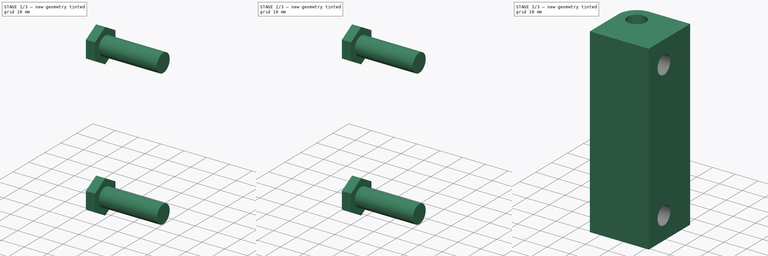
[diagram: build sequence overview — one tinted view per stage of 3, left to right]
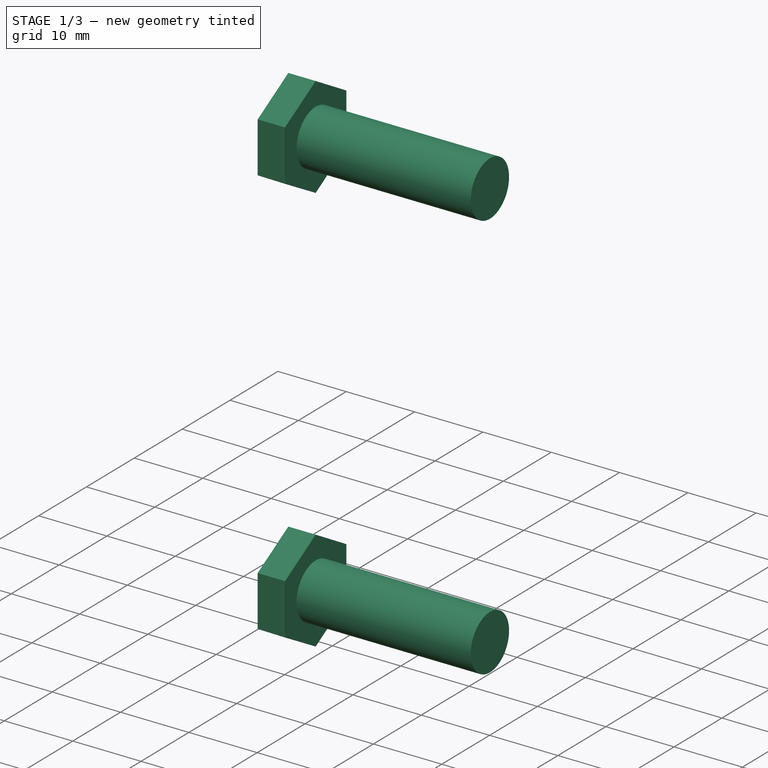
[diagram: stage 1 of 3 — iso view after this stage's code; geometry added in this stage tinted green]
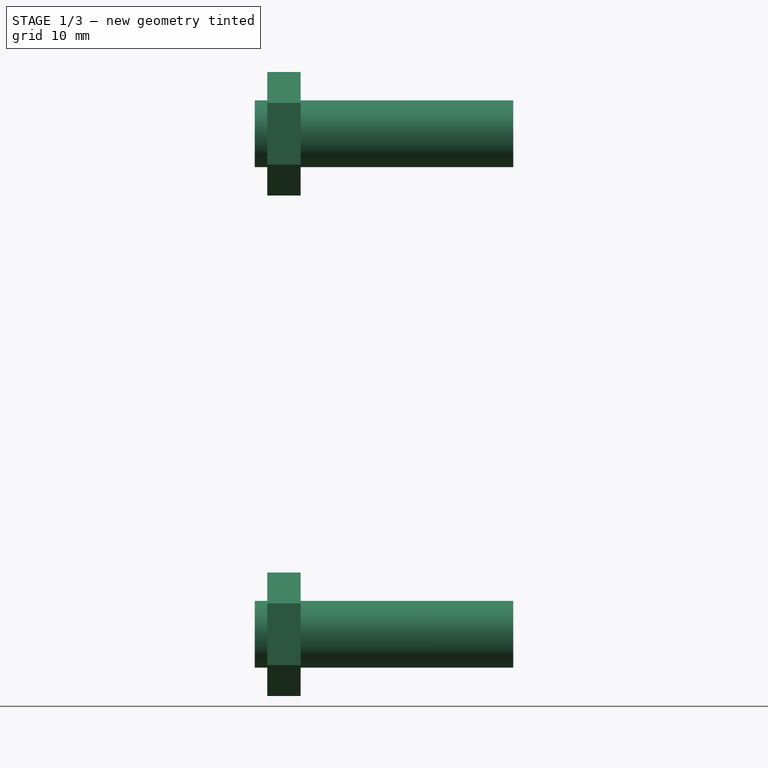
[diagram: stage 1 of 3 — front view after this stage's code; geometry added in this stage tinted green]
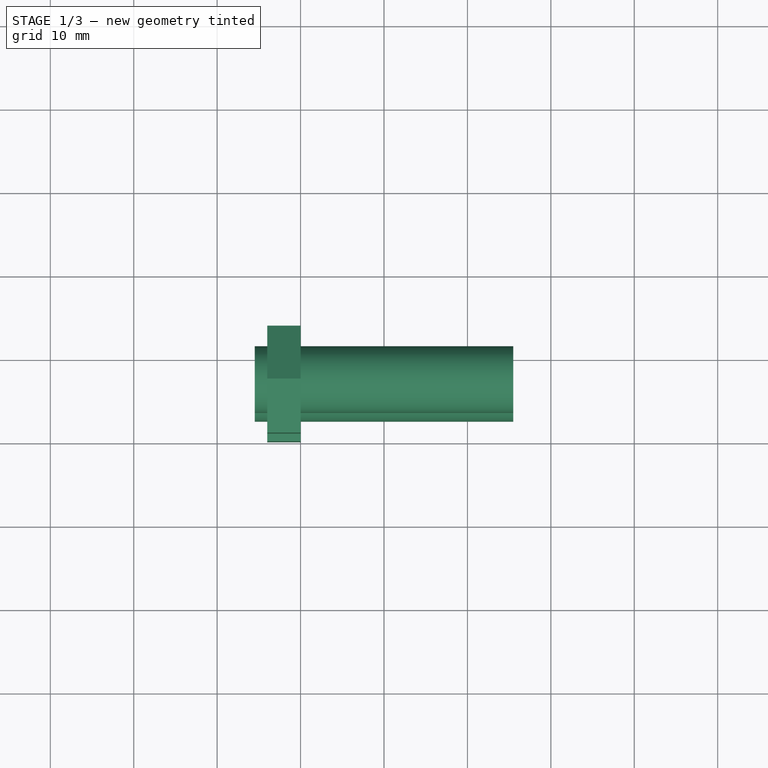
[diagram: stage 1 of 3 — top view after this stage's code; geometry added in this stage tinted green]
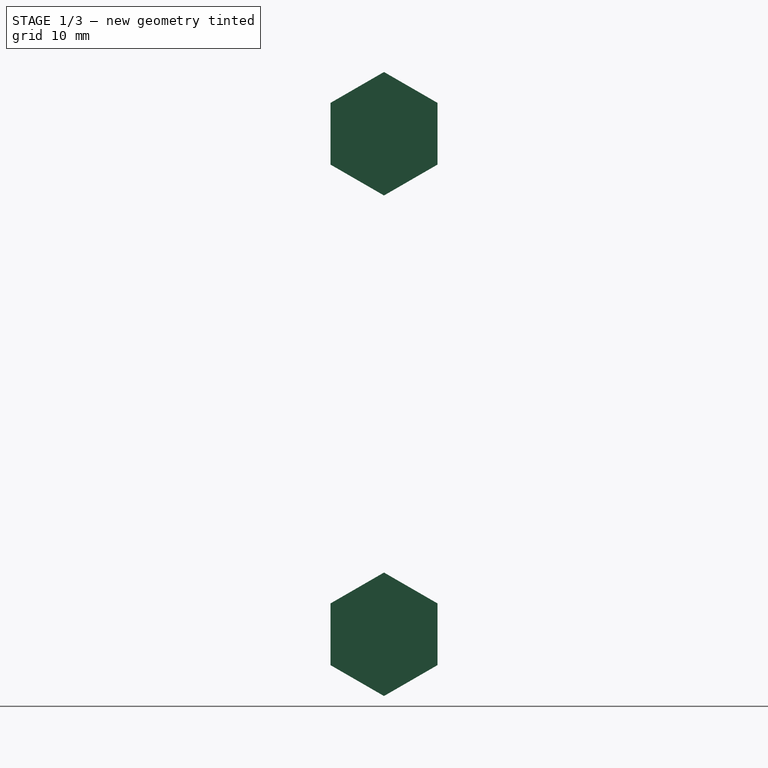
[diagram: stage 1 of 3 — right view after this stage's code; geometry added in this stage tinted green]
FCSTD DOCUMENT  (FreeCAD 0.16R6710 (Git))
Label: Corner_F
License: All rights reserved
LicenseURL: http://en.wikipedia.org/wiki/All_rights_reserved
objects: Sketcher::SketchObject×3, PartDesign::Pad×3, Part::MultiFuse×1, Part::Cut×1
note: 11 computed .brp shape members not serialized (recipe doc carries the construction recipe); baked Part::Feature solids carry a one-line shape summary decoded from their .brp

FEATURE [Sketcher::SketchObject] Sketch
  sketch-geometry (6):
    g0: LineSegment StartX=-13 StartY=5.00002 StartZ=0 EndX=-13 EndY=-13 EndZ=0
    g1: LineSegment StartX=-13 StartY=-13 StartZ=0 EndX=13 EndY=-13 EndZ=0
    g2: LineSegment StartX=13 StartY=-13 StartZ=0 EndX=13 EndY=13 EndZ=0
    g3: LineSegment StartX=13 StartY=13 StartZ=0 EndX=-5.00001 EndY=13 EndZ=0
    g4: ArcOfCircle CenterX=-5.00001 CenterY=5 CenterZ=0 NormalX=0 NormalY=0 NormalZ=1 Radius=8 StartAngle=1.5708 EndAngle=3.14159
    g5: Circle CenterX=-5.00001 CenterY=5 CenterZ=0 NormalX=0 NormalY=0 NormalZ=1 Radius=4.1
  constraints (18):
    c: Vertical(g0)
    c: Coincident(g0,g1)
    c: Horizontal(g1)
    c: Coincident(g1,g2)
    c: Vertical(g2)
    c: Coincident(g2,g3)
    c: Horizontal(g3)
    c: Coincident(g4,g3)
    c: Coincident(g4,g0)
    c: Equal(g0,g3)
    c: Coincident(g5,g4)
    c: Radius(g5) = 4.1
    c: DistanceY(g-1,g4) = 5
    c: Tangent(g0,g4)
    c: Symmetric(g0,g1,g-2)
    c: Symmetric(g1,g2,g-1)
    c: Tangent(g4,g3)
    c: DistanceY(g2,g2) = 26
FEATURE [Sketcher::SketchObject] Sketch001
  Placement = pos=(15.5,0,0) rot=(0.57735,0.57735,0.57735;2.0944rad)
  sketch-geometry (2):
    g0: Circle CenterX=-3.5 CenterY=70 CenterZ=0 NormalX=0 NormalY=0 NormalZ=1 Radius=4
    g1: Circle CenterX=-3.5 CenterY=10 CenterZ=0 NormalX=0 NormalY=0 NormalZ=1 Radius=4
  constraints (5):
    c: Radius(g1) = 4
    c: Equal(g1,g0)
    c: DistanceX(g0,g1) = 0
    c: DistanceY(g1,g0) = 60
    c: DistanceX(g1,g-1) = 3.5
FEATURE [Sketcher::SketchObject] Sketch002
  Placement = pos=(-10,0,0) rot=(0.57735,0.57735,0.57735;2.0944rad)
  sketch-geometry (14):
    g0: LineSegment StartX=2.90859 StartY=66.3 StartZ=0 EndX=2.90859 EndY=73.7 EndZ=0
    g1: LineSegment StartX=2.90859 StartY=73.7 StartZ=0 EndX=-3.5 EndY=77.4 EndZ=0
    g2: LineSegment StartX=-3.5 StartY=77.4 StartZ=0 EndX=-9.90859 EndY=73.7 EndZ=0
    g3: LineSegment StartX=-9.90859 StartY=73.7 StartZ=0 EndX=-9.90859 EndY=66.3 EndZ=0
    g4: LineSegment StartX=-9.90859 StartY=66.3 StartZ=0 EndX=-3.5 EndY=62.6 EndZ=0
    g5: LineSegment StartX=-3.5 StartY=62.6 StartZ=0 EndX=2.90859 EndY=66.3 EndZ=0
    g6: Circle [constr] CenterX=-3.5 CenterY=70 CenterZ=0 NormalX=0 NormalY=0 NormalZ=1 Radius=7.4
    g7: LineSegment StartX=-3.5 StartY=2.6 StartZ=0 EndX=2.90859 EndY=6.3 EndZ=0
    g8: LineSegment StartX=2.90859 StartY=6.3 StartZ=0 EndX=2.90859 EndY=13.7 EndZ=0
    g9: LineSegment StartX=2.90859 StartY=13.7 StartZ=0 EndX=-3.5 EndY=17.4 EndZ=0
    g10: LineSegment StartX=-3.5 StartY=17.4 StartZ=0 EndX=-9.90859 EndY=13.7 EndZ=0
    g11: LineSegment StartX=-9.90859 StartY=13.7 StartZ=0 EndX=-9.90859 EndY=6.3 EndZ=0
    g12: LineSegment StartX=-9.90859 StartY=6.3 StartZ=0 EndX=-3.5 EndY=2.6 EndZ=0
    g13: Circle [constr] CenterX=-3.5 CenterY=10 CenterZ=0 NormalX=0 NormalY=0 NormalZ=1 Radius=7.4
  constraints (34):
    c: Coincident(g0,g1)
    c: Coincident(g1,g2)
    c: Coincident(g2,g3)
    c: Coincident(g3,g4)
    c: Coincident(g4,g5)
    c: Coincident(g5,g0)
    c: Equal(g0, g1-g5) x5
    c: PointOnObject(g0,g6)
    c: PointOnObject(g1,g6)
    c: PointOnObject(g2,g6)
    c: PointOnObject(g3,g6)
    c: PointOnObject(g4,g6)
    c: PointOnObject(g5,g6)
    c: Coincident(g7,g8)
    c: Coincident(g8,g9)
    c: Coincident(g9,g10)
    c: Coincident(g10,g11)
    c: Coincident(g11,g12)
    c: Coincident(g12,g7)
    c: Equal(g7, g8-g12) x5
    c: PointOnObject(g7,g13)
    c: PointOnObject(g8,g13)
    c: PointOnObject(g9,g13)
    c: PointOnObject(g10,g13)
    c: PointOnObject(g11,g13)
    c: PointOnObject(g12,g13)
    c: Parallel(g9,g4)
    c: Radius(g6) = 7.4
    c: Equal(g6,g13)
    c: DistanceX(g13,g6) = 0
    c: DistanceY(g6,g13) = -60
    c: DistanceX(g6,g-1) = 3.5
    c: Parallel(g0,g-2)
    c: DistanceY(g-1,g13) = 10
FEATURE [PartDesign::Pad] Pad004  label="RodHole02"
  Length = 31
  Length2 = 100
  Placement = pos=(15.5,0,0) rot=(0.57735,0.57735,0.57735;2.0944rad)
  Reversed = true
  Sketch = -> Sketch001
  Type = 0
FEATURE [PartDesign::Pad] Pad006  label="SideNutFlush02"
  Length = 4
  Length2 = 100
  Placement = pos=(-10,0,0) rot=(0.57735,0.57735,0.57735;2.0944rad)
  Reversed = true
  Sketch = -> Sketch002
  Type = 0
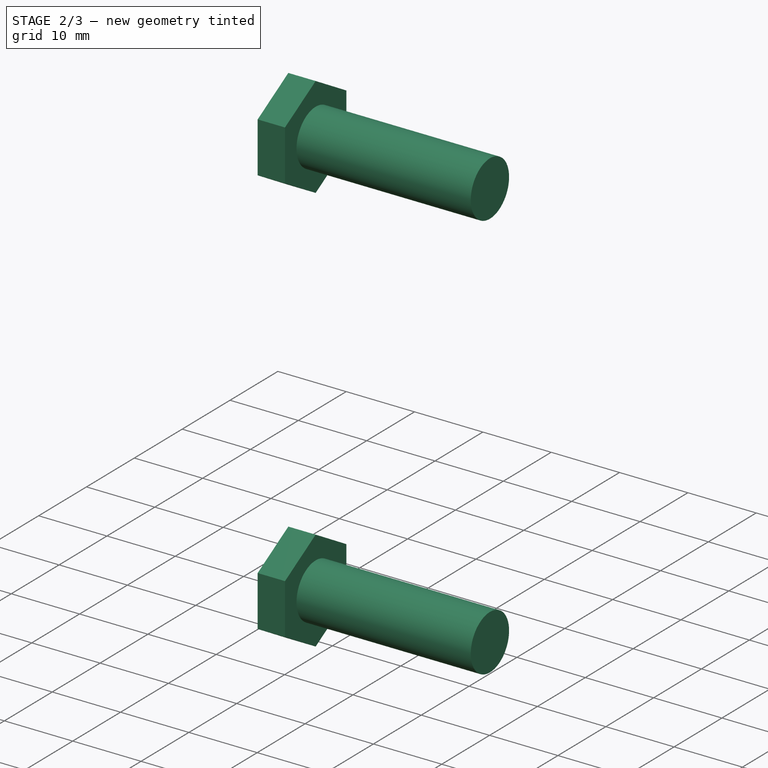
[diagram: stage 2 of 3 — iso view after this stage's code; geometry added in this stage tinted green]
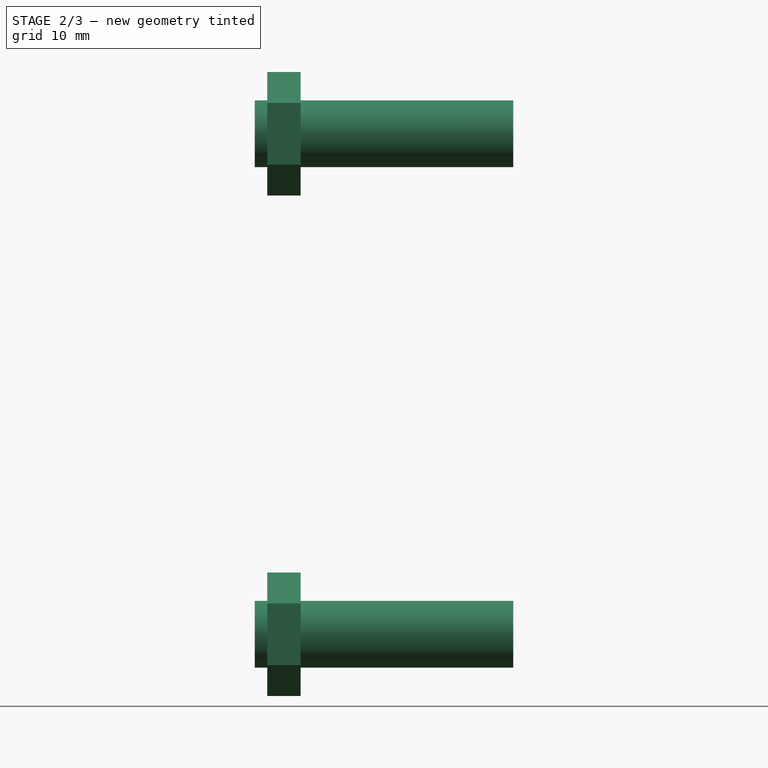
[diagram: stage 2 of 3 — front view after this stage's code; geometry added in this stage tinted green]
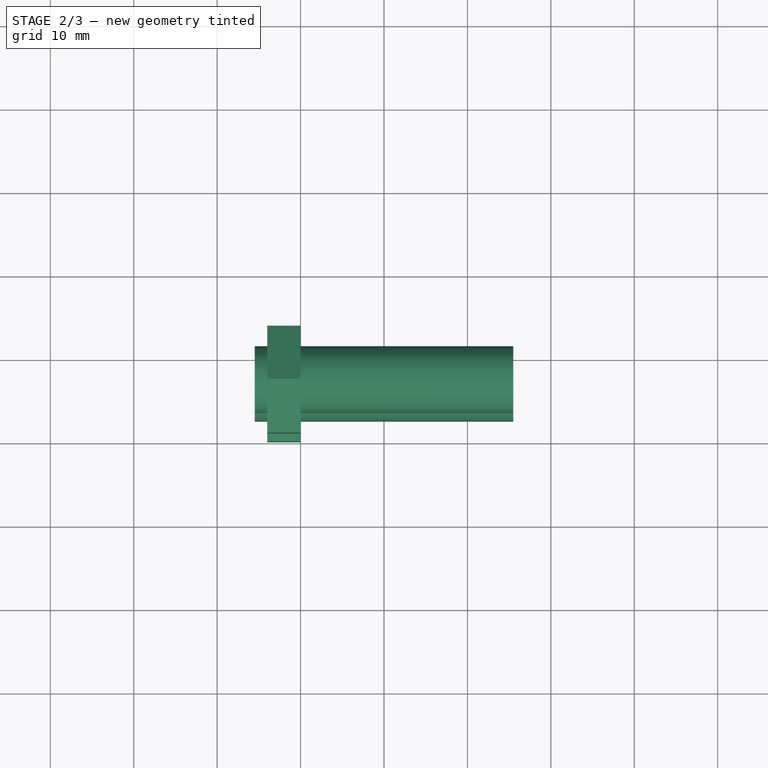
[diagram: stage 2 of 3 — top view after this stage's code; geometry added in this stage tinted green]
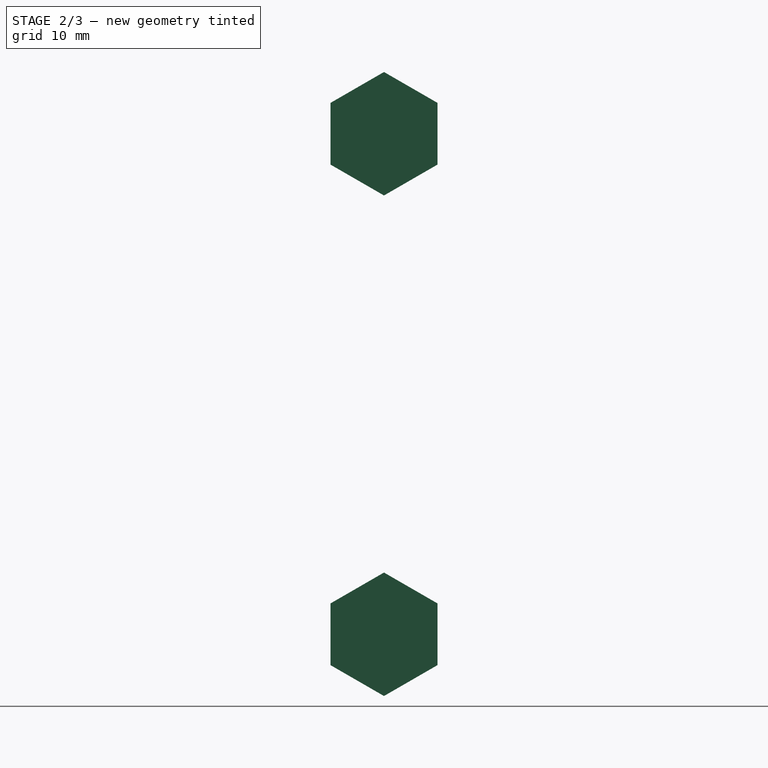
[diagram: stage 2 of 3 — right view after this stage's code; geometry added in this stage tinted green]
FEATURE [Part::MultiFuse] Fusion  label="CutBlock"
  Shapes = -> [Pad006,Pad004]
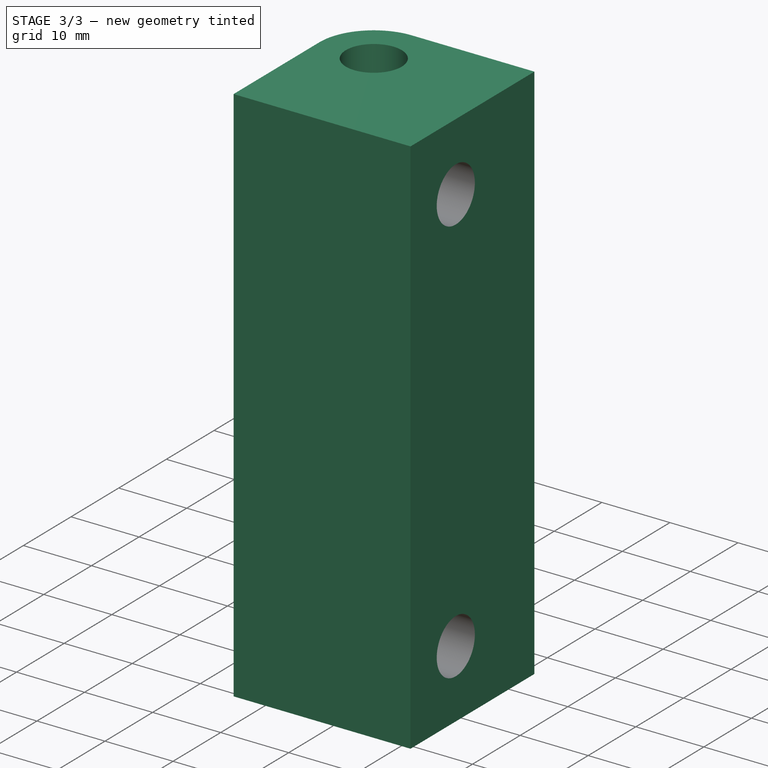
[diagram: stage 3 of 3 — iso view after this stage's code; geometry added in this stage tinted green]
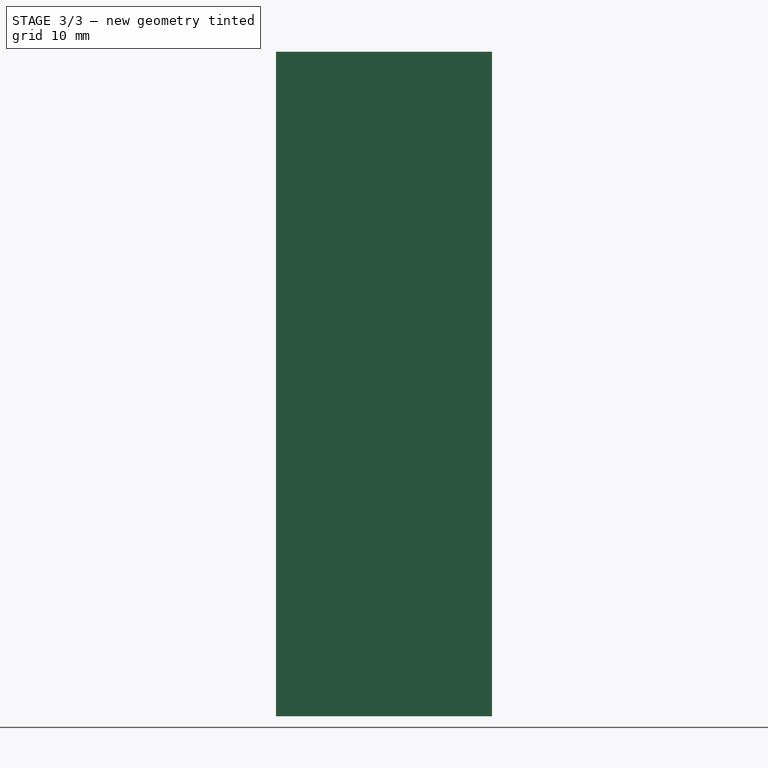
[diagram: stage 3 of 3 — front view after this stage's code; geometry added in this stage tinted green]
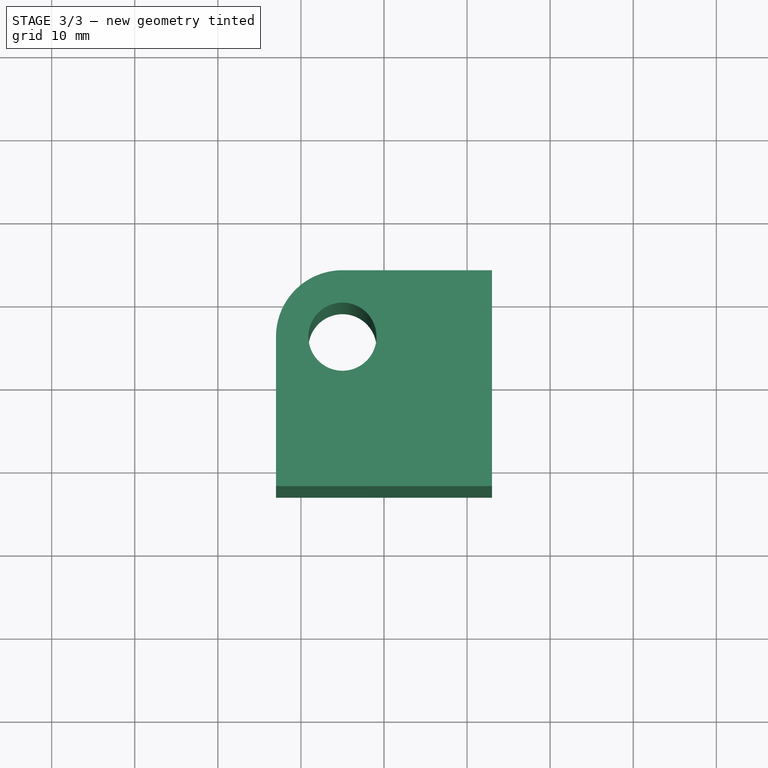
[diagram: stage 3 of 3 — top view after this stage's code; geometry added in this stage tinted green]
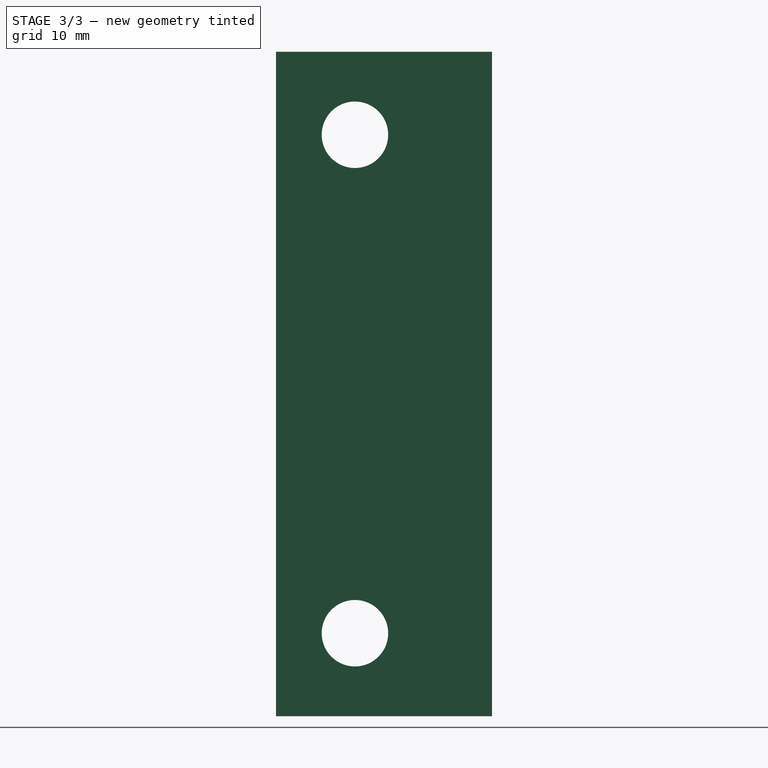
[diagram: stage 3 of 3 — right view after this stage's code; geometry added in this stage tinted green]
FEATURE [PartDesign::Pad] Pad  label="Base"
  Length = 80
  Length2 = 100
  Sketch = -> Sketch
  Type = 0
FEATURE [Part::Cut] Cut
  Base = -> Pad
  Tool = -> Fusion
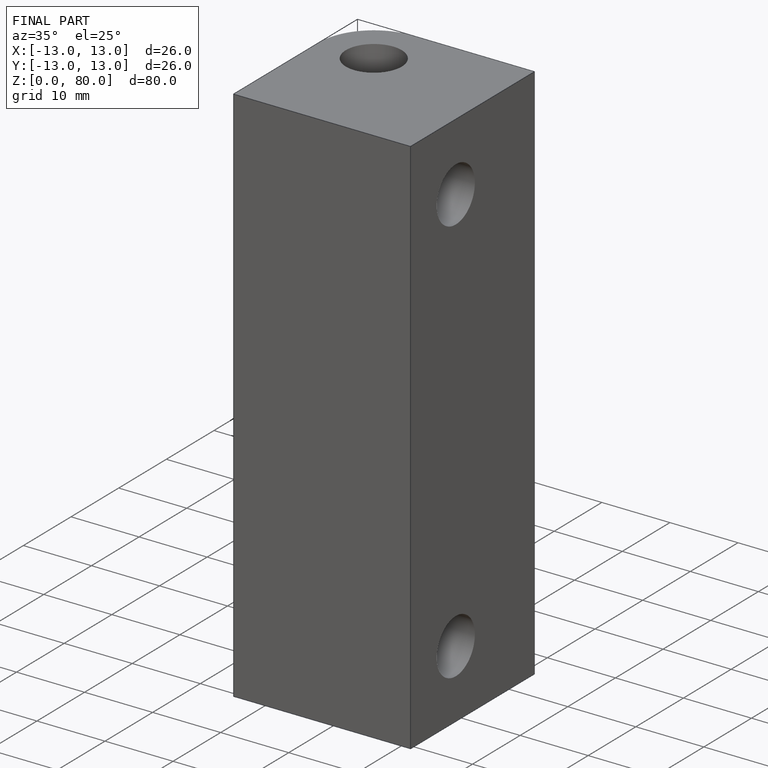
[diagram: finished part — iso view with bounding-box wireframe]
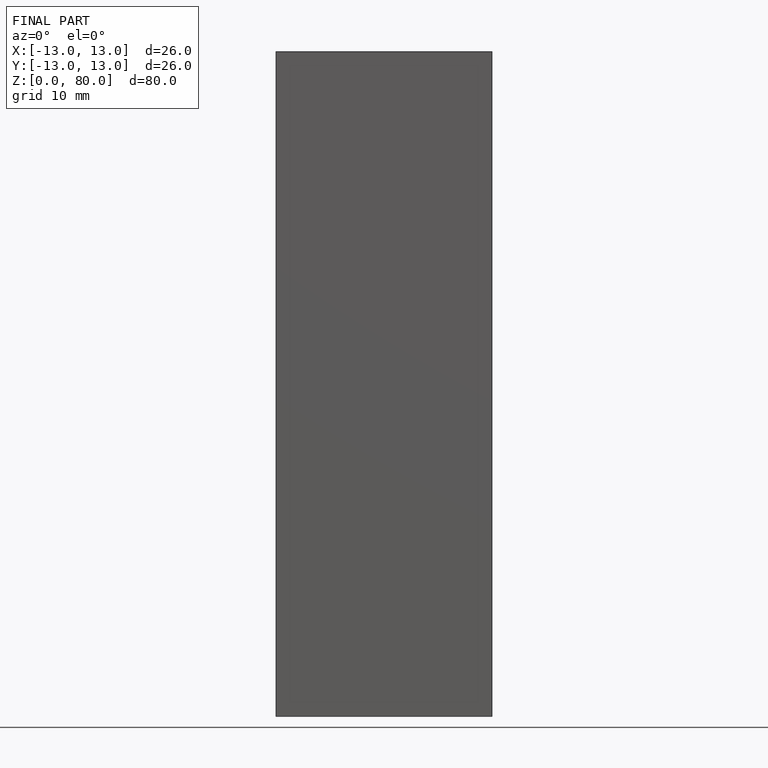
[diagram: finished part — front view with bounding-box wireframe]
